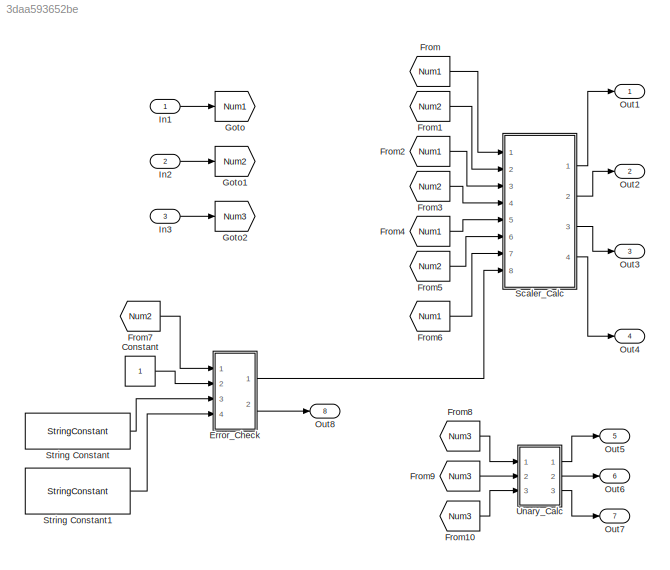
MODEL slx_3daa593652be
KIND model
CONFIG AbsTol = auto
CONFIG EnableMultiTasking = off
CONFIG FixedStep = auto
CONFIG MaxStep = auto
CONFIG MinStep = auto
CONFIG RelTol = 1e-3
CONFIG SampleTimeConstraint = Unconstrained
CONFIG SolverName = FixedStepDiscrete
CONFIG StartTime = 0.0
CONFIG StopTime = 10.0
BLOCK [Constant] Constant
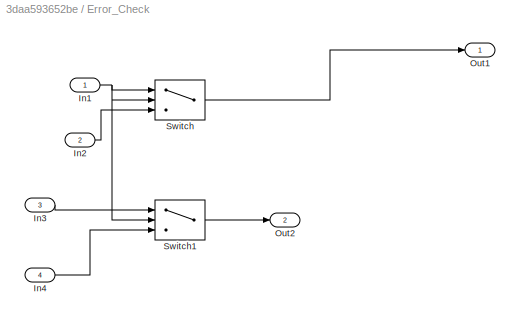
BLOCK [SubSystem] Error_Check
  Ports = [4, 2]
  RequestExecContextInheritance = off
  TreatAsAtomicUnit = on
BLOCK [Inport] Error_Check/In1
BLOCK [Inport] Error_Check/In2
  Port = 2
BLOCK [Inport] Error_Check/In3
  Port = 3
BLOCK [Inport] Error_Check/In4
  Port = 4
BLOCK [Outport] Error_Check/Out1
BLOCK [Outport] Error_Check/Out2
  Port = 2
BLOCK [Switch] Error_Check/Switch
  Criteria = u2 > Threshold
  InputSameDT = off
  SaturateOnIntegerOverflow = off
BLOCK [Switch] Error_Check/Switch1
  Criteria = u2 > Threshold
  InputSameDT = off
  SaturateOnIntegerOverflow = off
BLOCK [From] From
  GotoTag = Num1
BLOCK [From] From1
  GotoTag = Num2
BLOCK [From] From10
  GotoTag = Num3
BLOCK [From] From2
  GotoTag = Num1
BLOCK [From] From3
  GotoTag = Num2
BLOCK [From] From4
  GotoTag = Num1
BLOCK [From] From5
  GotoTag = Num2
BLOCK [From] From6
  GotoTag = Num1
BLOCK [From] From7
  GotoTag = Num2
BLOCK [From] From8
  GotoTag = Num3
BLOCK [From] From9
  GotoTag = Num3
BLOCK [Goto] Goto
  GotoTag = Num1
BLOCK [Goto] Goto1
  GotoTag = Num2
BLOCK [Goto] Goto2
  GotoTag = Num3
BLOCK [Inport] In1
  IconDisplay = Port number and signal name
  PortDimensions = 1
BLOCK [Inport] In2
  IconDisplay = Port number and signal name
  Port = 2
  PortDimensions = 1
BLOCK [Inport] In3
  IconDisplay = Port number and signal name
  Port = 3
  PortDimensions = 1
BLOCK [Outport] Out1
  SignalName = Add_Out
BLOCK [Outport] Out2
  Port = 2
  SignalName = Sub_Out
BLOCK [Outport] Out3
  Port = 3
  SignalName = Prod_Out
BLOCK [Outport] Out4
  Port = 4
  SignalName = Div_Out
BLOCK [Outport] Out5
  Port = 5
  SignalName = UMinus_Out
BLOCK [Outport] Out6
  Port = 6
  SignalName = Incr_Out
BLOCK [Outport] Out7
  Port = 7
  SignalName = Decr_Out
BLOCK [Outport] Out8
  Port = 8
  SignalName = Error_Out
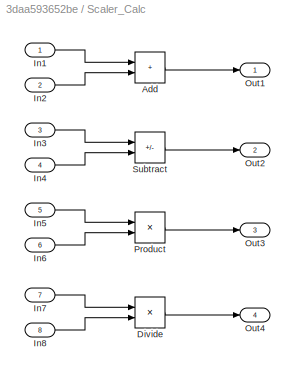
BLOCK [SubSystem] Scaler_Calc
  Ports = [8, 4]
  RequestExecContextInheritance = off
  TreatAsAtomicUnit = on
BLOCK [Sum] Scaler_Calc/Add
  IconShape = rectangular
  Ports = [2, 1]
BLOCK [Product] Scaler_Calc/Divide
  Inputs = */
  Ports = [2, 1]
BLOCK [Inport] Scaler_Calc/In1
BLOCK [Inport] Scaler_Calc/In2
  Port = 2
BLOCK [Inport] Scaler_Calc/In3
  Port = 3
BLOCK [Inport] Scaler_Calc/In4
  Port = 4
BLOCK [Inport] Scaler_Calc/In5
  Port = 5
BLOCK [Inport] Scaler_Calc/In6
  Port = 6
BLOCK [Inport] Scaler_Calc/In7
  Port = 7
BLOCK [Inport] Scaler_Calc/In8
  Port = 8
BLOCK [Outport] Scaler_Calc/Out1
BLOCK [Outport] Scaler_Calc/Out2
  Port = 2
BLOCK [Outport] Scaler_Calc/Out3
  Port = 3
BLOCK [Outport] Scaler_Calc/Out4
  Port = 4
BLOCK [Product] Scaler_Calc/Product
  Ports = [2, 1]
BLOCK [Sum] Scaler_Calc/Subtract
  IconShape = rectangular
  Inputs = +-
  Ports = [2, 1]
BLOCK [StringConstant] String Constant
  String = "No Errors!"
BLOCK [StringConstant] String Constant1
  String = "Can't Divide by Zero!"
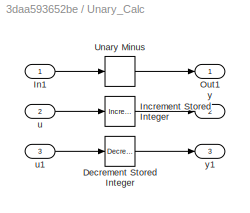
BLOCK [SubSystem] Unary_Calc
  Ports = [3, 3]
  RequestExecContextInheritance = off
  TreatAsAtomicUnit = on
BLOCK [Reference] Unary_Calc/Decrement Stored Integer  REF=simulink/Additional Math
& Discrete/Additional Math:
Increment - Decrement/Decrement
Stored Integer
  Ports = [1, 1]
  SourceBlock = simulink/Additional Math\n& Discrete/Additional Math:\nIncrement - Decrement/Decrement\nStored Integer
  SourceProductBaseCode = SL
  SourceType = Stored Integer Value Decrement
BLOCK [Inport] Unary_Calc/In1
BLOCK [Reference] Unary_Calc/Increment Stored Integer  REF=simulink/Additional Math
& Discrete/Additional Math:
Increment - Decrement/Increment
Stored Integer
  Ports = [1, 1]
  SourceBlock = simulink/Additional Math\n& Discrete/Additional Math:\nIncrement - Decrement/Increment\nStored Integer
  SourceProductBaseCode = SL
  SourceType = Stored Integer Value Increment
BLOCK [Outport] Unary_Calc/Out1
BLOCK [UnaryMinus] Unary_Calc/Unary Minus
BLOCK [Inport] Unary_Calc/u
  Port = 2
BLOCK [Inport] Unary_Calc/u1
  Port = 3
BLOCK [Outport] Unary_Calc/y
  Port = 2
BLOCK [Outport] Unary_Calc/y1
  Port = 3
LINE Constant:1 -> Error_Check:2
NET Error_Check/In1:1 -> Error_Check/Switch1:2, Error_Check/Switch:1, Error_Check/Switch:2
LINE Error_Check/In2:1 -> Error_Check/Switch:3
LINE Error_Check/In3:1 -> Error_Check/Switch1:1
LINE Error_Check/In4:1 -> Error_Check/Switch1:3
LINE Error_Check/Switch1:1 -> Error_Check/Out2:1
LINE Error_Check/Switch:1 -> Error_Check/Out1:1
LINE Error_Check:1 -> Scaler_Calc:8
LINE Error_Check:2 -> Out8:1
LINE From10:1 -> Unary_Calc:3
LINE From1:1 -> Scaler_Calc:2
LINE From2:1 -> Scaler_Calc:3
LINE From3:1 -> Scaler_Calc:4
LINE From4:1 -> Scaler_Calc:5
LINE From5:1 -> Scaler_Calc:6
LINE From6:1 -> Scaler_Calc:7
LINE From7:1 -> Error_Check:1
LINE From8:1 -> Unary_Calc:1
LINE From9:1 -> Unary_Calc:2
LINE From:1 -> Scaler_Calc:1
LINE In1:1 -> Goto:1
LINE In2:1 -> Goto1:1
LINE In3:1 -> Goto2:1
LINE Scaler_Calc/Add:1 -> Scaler_Calc/Out1:1
LINE Scaler_Calc/Divide:1 -> Scaler_Calc/Out4:1
LINE Scaler_Calc/In1:1 -> Scaler_Calc/Add:1
LINE Scaler_Calc/In2:1 -> Scaler_Calc/Add:2
LINE Scaler_Calc/In3:1 -> Scaler_Calc/Subtract:1
LINE Scaler_Calc/In4:1 -> Scaler_Calc/Subtract:2
LINE Scaler_Calc/In5:1 -> Scaler_Calc/Product:1
LINE Scaler_Calc/In6:1 -> Scaler_Calc/Product:2
LINE Scaler_Calc/In7:1 -> Scaler_Calc/Divide:1
LINE Scaler_Calc/In8:1 -> Scaler_Calc/Divide:2
LINE Scaler_Calc/Product:1 -> Scaler_Calc/Out3:1
LINE Scaler_Calc/Subtract:1 -> Scaler_Calc/Out2:1
LINE Scaler_Calc:1 -> Out1:1
LINE Scaler_Calc:2 -> Out2:1
LINE Scaler_Calc:3 -> Out3:1
LINE Scaler_Calc:4 -> Out4:1
LINE String Constant1:1 -> Error_Check:4
LINE String Constant:1 -> Error_Check:3
LINE Unary_Calc/Decrement Stored Integer:1 -> Unary_Calc/y1:1
LINE Unary_Calc/In1:1 -> Unary_Calc/Unary Minus:1
LINE Unary_Calc/Increment Stored Integer:1 -> Unary_Calc/y:1
LINE Unary_Calc/Unary Minus:1 -> Unary_Calc/Out1:1
LINE Unary_Calc/u1:1 -> Unary_Calc/Decrement Stored Integer:1
LINE Unary_Calc/u:1 -> Unary_Calc/Increment Stored Integer:1
LINE Unary_Calc:1 -> Out5:1
LINE Unary_Calc:2 -> Out6:1
LINE Unary_Calc:3 -> Out7:1
note: NET lines group one-source signal fan-out (src -> all destinations, sorted); 1:1 wires keep LINE
